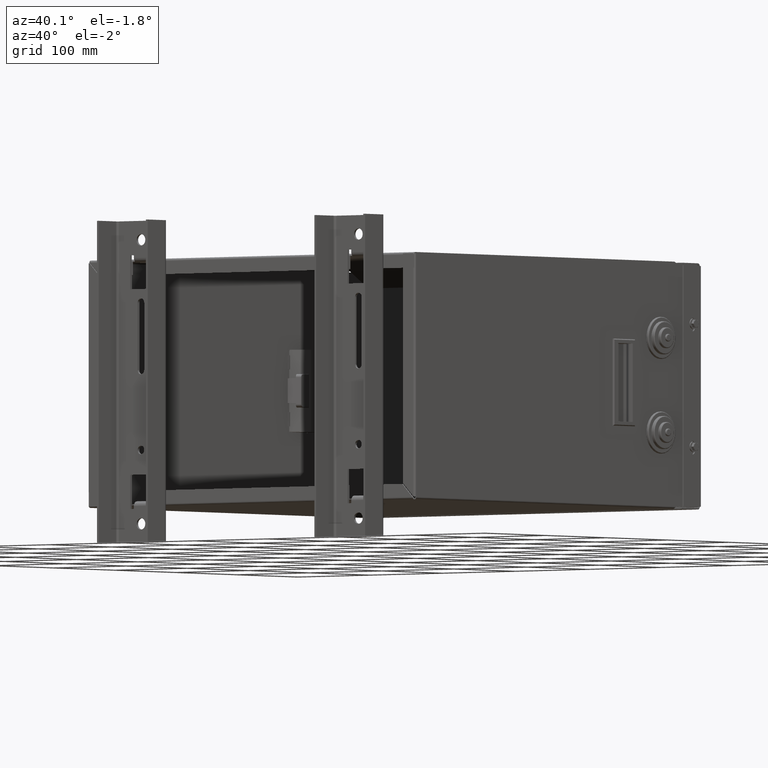
[diagram: clean part render]
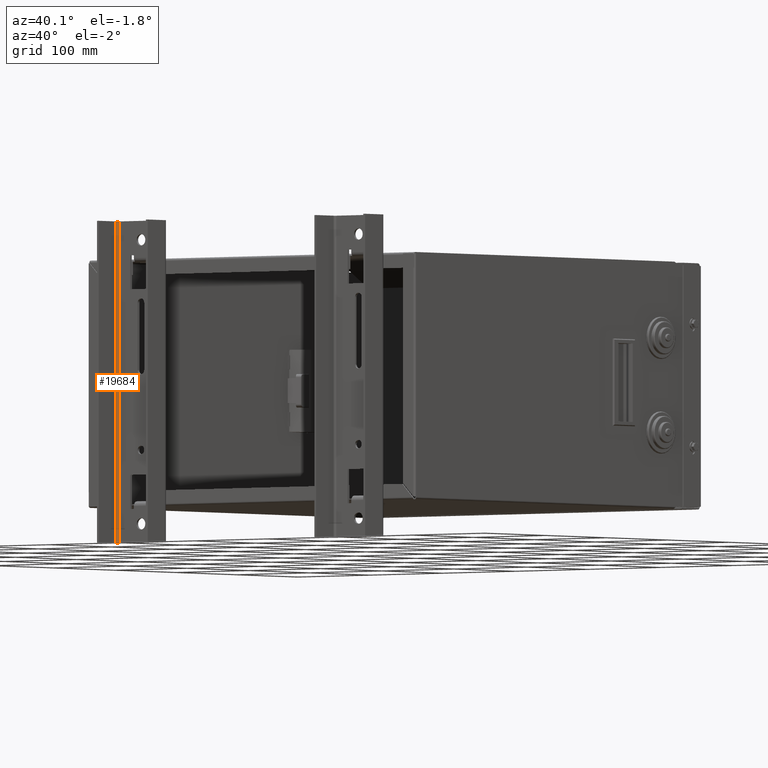
[diagram: same view with one face highlighted and labeled with its STEP entity id]
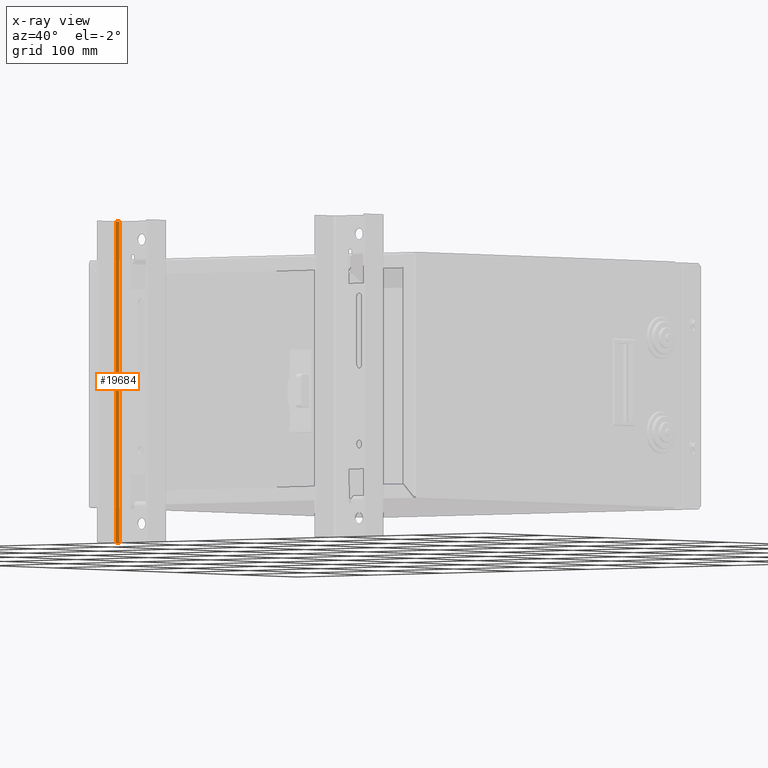
[diagram: x-ray of the same camera — body ghosted, the highlighted face saturated]
A machine part, auxiliary view. The second image highlights one B-rep face of the part: STEP entity #19684.
The next image is the same camera in x-ray: the body ghosted, the highlighted face saturated — about 0% of this face is hidden behind the body in this view.
In plain terms, the highlighted cylindrical surface (edge-blend (fillet) strip) has radius 2.5 mm, axis along (0, 0, 1).
Its self-contained STEP definition (entity closure, byte-faithful):
#2687=LINE('',#31407,#4405);
#2737=LINE('',#31533,#4455);
#4405=VECTOR('',#25624,10.);
#4455=VECTOR('',#25742,10.);
#6036=FACE_OUTER_BOUND('',#7418,.T.);
#7418=EDGE_LOOP('',(#16858,#16859,#16860,#16861));
#8583=CIRCLE('',#21351,2.5);
#8584=CIRCLE('',#21353,2.5);
#10021=VERTEX_POINT('',#31404);
#10022=VERTEX_POINT('',#31406);
#10061=VERTEX_POINT('',#31524);
#10064=VERTEX_POINT('',#31532);
#12401=EDGE_CURVE('',#10021,#10022,#2687,.T.);
#12463=EDGE_CURVE('',#10061,#10064,#2737,.T.);
#12467=EDGE_CURVE('',#10064,#10021,#8583,.T.);
#12470=EDGE_CURVE('',#10061,#10022,#8584,.T.);
#16858=ORIENTED_EDGE('',*,*,#12463,.F.);
#16859=ORIENTED_EDGE('',*,*,#12470,.T.);
#16860=ORIENTED_EDGE('',*,*,#12401,.F.);
#16861=ORIENTED_EDGE('',*,*,#12467,.F.);
#18886=CYLINDRICAL_SURFACE('',#21357,2.5);
#19684=ADVANCED_FACE('',(#6036),#18886,.F.);
#21351=AXIS2_PLACEMENT_3D('',#31539,#25748,#25749);
#21353=AXIS2_PLACEMENT_3D('',#31543,#25754,#25755);
#21357=AXIS2_PLACEMENT_3D('',#31551,#25765,#25766);
#25624=DIRECTION('',(-1.21654944622524E-18,-5.77373558311136E-17,-1.));
#25742=DIRECTION('',(1.27751457982857E-18,5.77373558311136E-17,1.));
#25748=DIRECTION('center_axis',(-1.21654944622524E-18,-5.77373558311136E-17,
-1.));
#25749=DIRECTION('ref_axis',(-1.,1.10323004393808E-16,1.21654944622524E-18));
#25754=DIRECTION('center_axis',(-1.21654944622524E-18,-5.77373558311136E-17,
-1.));
#25755=DIRECTION('ref_axis',(-1.,1.10323004393808E-16,1.21654944622524E-18));
#25765=DIRECTION('center_axis',(1.21654944622524E-18,5.77373558311136E-17,
1.));
#25766=DIRECTION('ref_axis',(-6.99298068707203E-19,1.,-5.77373558311136E-17));
#31404=CARTESIAN_POINT('',(46.2,-3.5000000000003,41.5));
#31406=CARTESIAN_POINT('',(46.2,-3.50000000000032,-298.5));
#31407=CARTESIAN_POINT('',(46.2,-3.50000000000031,-213.5));
#31524=CARTESIAN_POINT('',(43.7,-6.00000000000032,-298.5));
#31532=CARTESIAN_POINT('',(43.7,-6.0000000000003,41.5));
#31533=CARTESIAN_POINT('',(43.7,-6.0000000000003,-128.5));
#31539=CARTESIAN_POINT('Origin',(46.2,-6.0000000000003,41.5));
#31543=CARTESIAN_POINT('Origin',(46.2,-6.00000000000032,-298.5));
#31551=CARTESIAN_POINT('Origin',(46.2,-6.00000000000031,-128.5));